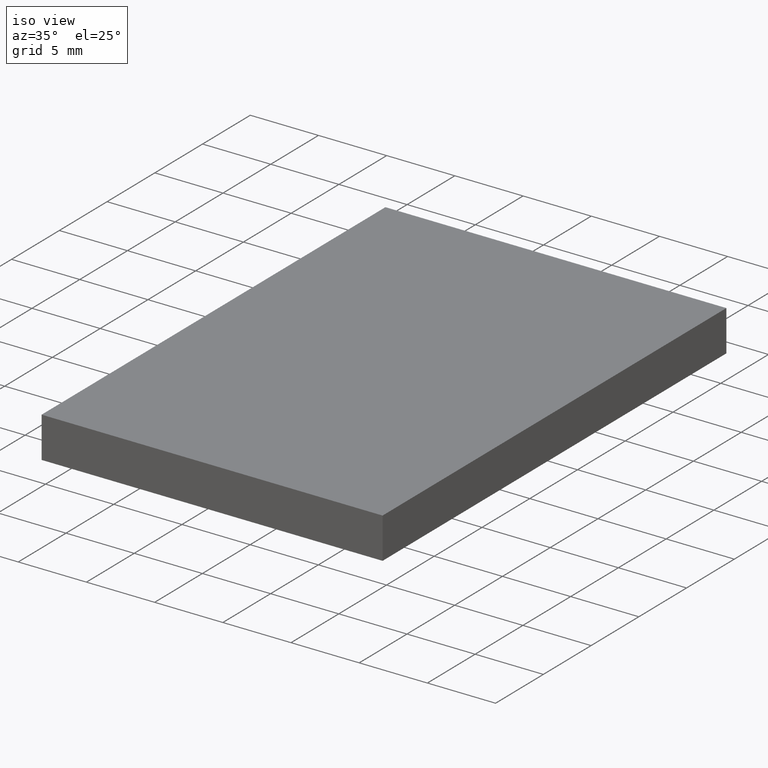
[diagram: clean part render]
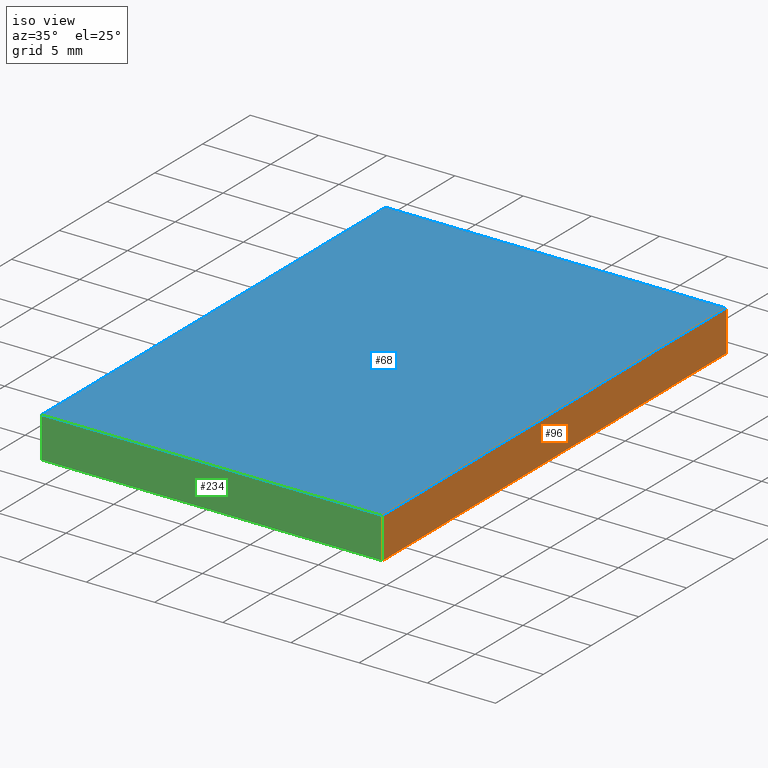
[diagram: same view with three faces highlighted in distinct colors, each labeled with its STEP entity id]
A machine part, iso view with three faces highlighted in distinct colors.
Their STEP definitions:

[orange] entity #96 — the highlighted planar face has unit normal (-1, -0, 0).
#10 = VERTEX_POINT ( 'NONE', #92 ) ;
#15 = DIRECTION ( 'NONE',  ( 2.891205793294678800E-016, -1.000000000000000000, 0.0000000000000000000 ) ) ;
#26 = CARTESIAN_POINT ( 'NONE',  ( 18.64837398373983700, 7.520325203252024700, 0.0000000000000000000 ) ) ;
#35 = VERTEX_POINT ( 'NONE', #70 ) ;
#41 = ORIENTED_EDGE ( 'NONE', *, *, #194, .F. ) ;
#50 = CARTESIAN_POINT ( 'NONE',  ( 18.64837398373984800, -28.47967479674797200, 3.000000000000000000 ) ) ;
#70 = CARTESIAN_POINT ( 'NONE',  ( 18.64837398373983700, 7.520325203252024700, 3.000000000000000000 ) ) ;
#71 = FACE_OUTER_BOUND ( 'NONE', #302, .T. ) ;
#91 = DIRECTION ( 'NONE',  ( -1.000000000000000000, -2.891205793294678800E-016, 0.0000000000000000000 ) ) ;
#92 = CARTESIAN_POINT ( 'NONE',  ( 18.64837398373984800, -28.47967479674797200, 0.0000000000000000000 ) ) ;
#96 = ADVANCED_FACE ( 'NONE', ( #71 ), #287, .F. ) ;
#102 = LINE ( 'NONE', #204, #235 ) ;
#109 = EDGE_CURVE ( 'NONE', #200, #10, #239, .T. ) ;
#118 = EDGE_CURVE ( 'NONE', #35, #155, #254, .T. ) ;
#135 = ORIENTED_EDGE ( 'NONE', *, *, #118, .F. ) ;
#141 = CARTESIAN_POINT ( 'NONE',  ( 18.64837398373983700, 7.520325203252024700, 3.000000000000000000 ) ) ;
#143 = DIRECTION ( 'NONE',  ( -0.0000000000000000000, -0.0000000000000000000, -1.000000000000000000 ) ) ;
#155 = VERTEX_POINT ( 'NONE', #172 ) ;
#172 = CARTESIAN_POINT ( 'NONE',  ( 18.64837398373983700, 7.520325203252024700, 0.0000000000000000000 ) ) ;
#173 = EDGE_CURVE ( 'NONE', #10, #155, #223, .T. ) ;
#194 = EDGE_CURVE ( 'NONE', #200, #35, #102, .T. ) ;
#200 = VERTEX_POINT ( 'NONE', #50 ) ;
#204 = CARTESIAN_POINT ( 'NONE',  ( 18.64837398373983700, 7.520325203252024700, 3.000000000000000000 ) ) ;
#223 = LINE ( 'NONE', #26, #301 ) ;
#225 = AXIS2_PLACEMENT_3D ( 'NONE', #141, #91, #15 ) ;
#235 = VECTOR ( 'NONE', #251, 1000.000000000000000 ) ;
#239 = LINE ( 'NONE', #247, #264 ) ;
#244 = ORIENTED_EDGE ( 'NONE', *, *, #109, .T. ) ;
#247 = CARTESIAN_POINT ( 'NONE',  ( 18.64837398373984800, -28.47967479674797200, 3.000000000000000000 ) ) ;
#251 = DIRECTION ( 'NONE',  ( -2.891205793294678800E-016, 1.000000000000000000, -0.0000000000000000000 ) ) ;
#254 = LINE ( 'NONE', #267, #295 ) ;
#264 = VECTOR ( 'NONE', #285, 1000.000000000000000 ) ;
#267 = CARTESIAN_POINT ( 'NONE',  ( 18.64837398373983700, 7.520325203252024700, 3.000000000000000000 ) ) ;
#285 = DIRECTION ( 'NONE',  ( -0.0000000000000000000, -0.0000000000000000000, -1.000000000000000000 ) ) ;
#287 = PLANE ( 'NONE',  #225 ) ;
#289 = ORIENTED_EDGE ( 'NONE', *, *, #173, .T. ) ;
#295 = VECTOR ( 'NONE', #143, 1000.000000000000000 ) ;
#301 = VECTOR ( 'NONE', #310, 1000.000000000000000 ) ;
#302 = EDGE_LOOP ( 'NONE', ( #289, #135, #41, #244 ) ) ;
#310 = DIRECTION ( 'NONE',  ( -2.891205793294678800E-016, 1.000000000000000000, -0.0000000000000000000 ) ) ;

[blue] entity #68 — the highlighted planar face has unit normal (-0, 0, 1).
#5 = ORIENTED_EDGE ( 'NONE', *, *, #182, .T. ) ;
#16 = DIRECTION ( 'NONE',  ( -0.0000000000000000000, 0.0000000000000000000, 1.000000000000000000 ) ) ;
#22 = CARTESIAN_POINT ( 'NONE',  ( -6.351626016260158100, -28.47967479674797200, 3.000000000000000000 ) ) ;
#27 = CARTESIAN_POINT ( 'NONE',  ( -6.351626016260162500, 7.520325203252024700, 3.000000000000000000 ) ) ;
#28 = VECTOR ( 'NONE', #250, 1000.000000000000000 ) ;
#29 = ORIENTED_EDGE ( 'NONE', *, *, #124, .T. ) ;
#35 = VERTEX_POINT ( 'NONE', #70 ) ;
#42 = CARTESIAN_POINT ( 'NONE',  ( -6.351626016260162500, 7.520325203252024700, 3.000000000000000000 ) ) ;
#50 = CARTESIAN_POINT ( 'NONE',  ( 18.64837398373984800, -28.47967479674797200, 3.000000000000000000 ) ) ;
#52 = CARTESIAN_POINT ( 'NONE',  ( -6.351626016260158100, -28.47967479674797200, 3.000000000000000000 ) ) ;
#60 = LINE ( 'NONE', #52, #28 ) ;
#63 = LINE ( 'NONE', #42, #224 ) ;
#68 = ADVANCED_FACE ( 'NONE', ( #298 ), #306, .T. ) ;
#70 = CARTESIAN_POINT ( 'NONE',  ( 18.64837398373983700, 7.520325203252024700, 3.000000000000000000 ) ) ;
#75 = DIRECTION ( 'NONE',  ( -1.000000000000000000, -0.0000000000000000000, -0.0000000000000000000 ) ) ;
#88 = EDGE_CURVE ( 'NONE', #174, #180, #63, .T. ) ;
#94 = ORIENTED_EDGE ( 'NONE', *, *, #88, .T. ) ;
#102 = LINE ( 'NONE', #204, #235 ) ;
#120 = CARTESIAN_POINT ( 'NONE',  ( -6.351626016260162500, 7.520325203252024700, 3.000000000000000000 ) ) ;
#124 = EDGE_CURVE ( 'NONE', #35, #174, #305, .T. ) ;
#162 = EDGE_LOOP ( 'NONE', ( #94, #5, #242, #29 ) ) ;
#174 = VERTEX_POINT ( 'NONE', #27 ) ;
#180 = VERTEX_POINT ( 'NONE', #22 ) ;
#182 = EDGE_CURVE ( 'NONE', #180, #200, #60, .T. ) ;
#186 = VECTOR ( 'NONE', #75, 1000.000000000000000 ) ;
#194 = EDGE_CURVE ( 'NONE', #200, #35, #102, .T. ) ;
#195 = CARTESIAN_POINT ( 'NONE',  ( 0.0000000000000000000, 0.0000000000000000000, 3.000000000000000000 ) ) ;
#200 = VERTEX_POINT ( 'NONE', #50 ) ;
#204 = CARTESIAN_POINT ( 'NONE',  ( 18.64837398373983700, 7.520325203252024700, 3.000000000000000000 ) ) ;
#218 = AXIS2_PLACEMENT_3D ( 'NONE', #195, #16, #220 ) ;
#220 = DIRECTION ( 'NONE',  ( 1.000000000000000000, 0.0000000000000000000, 0.0000000000000000000 ) ) ;
#222 = DIRECTION ( 'NONE',  ( 1.204669080539449300E-016, -1.000000000000000000, 0.0000000000000000000 ) ) ;
#224 = VECTOR ( 'NONE', #222, 1000.000000000000000 ) ;
#235 = VECTOR ( 'NONE', #251, 1000.000000000000000 ) ;
#242 = ORIENTED_EDGE ( 'NONE', *, *, #194, .T. ) ;
#250 = DIRECTION ( 'NONE',  ( 1.000000000000000000, 0.0000000000000000000, 0.0000000000000000000 ) ) ;
#251 = DIRECTION ( 'NONE',  ( -2.891205793294678800E-016, 1.000000000000000000, -0.0000000000000000000 ) ) ;
#298 = FACE_OUTER_BOUND ( 'NONE', #162, .T. ) ;
#305 = LINE ( 'NONE', #120, #186 ) ;
#306 = PLANE ( 'NONE',  #218 ) ;

[green] entity #234 — the highlighted planar face has unit normal (0, 1, 0).
#10 = VERTEX_POINT ( 'NONE', #92 ) ;
#22 = CARTESIAN_POINT ( 'NONE',  ( -6.351626016260158100, -28.47967479674797200, 3.000000000000000000 ) ) ;
#25 = ORIENTED_EDGE ( 'NONE', *, *, #109, .F. ) ;
#28 = VECTOR ( 'NONE', #250, 1000.000000000000000 ) ;
#39 = EDGE_LOOP ( 'NONE', ( #217, #25, #55, #286 ) ) ;
#50 = CARTESIAN_POINT ( 'NONE',  ( 18.64837398373984800, -28.47967479674797200, 3.000000000000000000 ) ) ;
#52 = CARTESIAN_POINT ( 'NONE',  ( -6.351626016260158100, -28.47967479674797200, 3.000000000000000000 ) ) ;
#55 = ORIENTED_EDGE ( 'NONE', *, *, #182, .F. ) ;
#57 = VECTOR ( 'NONE', #268, 1000.000000000000000 ) ;
#60 = LINE ( 'NONE', #52, #28 ) ;
#77 = EDGE_CURVE ( 'NONE', #180, #190, #108, .T. ) ;
#92 = CARTESIAN_POINT ( 'NONE',  ( 18.64837398373984800, -28.47967479674797200, 0.0000000000000000000 ) ) ;
#95 = AXIS2_PLACEMENT_3D ( 'NONE', #100, #151, #98 ) ;
#98 = DIRECTION ( 'NONE',  ( 0.0000000000000000000, -0.0000000000000000000, 1.000000000000000000 ) ) ;
#100 = CARTESIAN_POINT ( 'NONE',  ( -6.351626016260158100, -28.47967479674797200, 3.000000000000000000 ) ) ;
#107 = FACE_OUTER_BOUND ( 'NONE', #39, .T. ) ;
#108 = LINE ( 'NONE', #197, #57 ) ;
#109 = EDGE_CURVE ( 'NONE', #200, #10, #239, .T. ) ;
#121 = PLANE ( 'NONE',  #95 ) ;
#151 = DIRECTION ( 'NONE',  ( 0.0000000000000000000, 1.000000000000000000, 0.0000000000000000000 ) ) ;
#177 = DIRECTION ( 'NONE',  ( 1.000000000000000000, 0.0000000000000000000, 0.0000000000000000000 ) ) ;
#180 = VERTEX_POINT ( 'NONE', #22 ) ;
#182 = EDGE_CURVE ( 'NONE', #180, #200, #60, .T. ) ;
#190 = VERTEX_POINT ( 'NONE', #202 ) ;
#192 = LINE ( 'NONE', #201, #262 ) ;
#197 = CARTESIAN_POINT ( 'NONE',  ( -6.351626016260158100, -28.47967479674797200, 3.000000000000000000 ) ) ;
#200 = VERTEX_POINT ( 'NONE', #50 ) ;
#201 = CARTESIAN_POINT ( 'NONE',  ( -6.351626016260158100, -28.47967479674797200, 0.0000000000000000000 ) ) ;
#202 = CARTESIAN_POINT ( 'NONE',  ( -6.351626016260158100, -28.47967479674797200, 0.0000000000000000000 ) ) ;
#217 = ORIENTED_EDGE ( 'NONE', *, *, #304, .T. ) ;
#234 = ADVANCED_FACE ( 'NONE', ( #107 ), #121, .F. ) ;
#239 = LINE ( 'NONE', #247, #264 ) ;
#247 = CARTESIAN_POINT ( 'NONE',  ( 18.64837398373984800, -28.47967479674797200, 3.000000000000000000 ) ) ;
#250 = DIRECTION ( 'NONE',  ( 1.000000000000000000, 0.0000000000000000000, 0.0000000000000000000 ) ) ;
#262 = VECTOR ( 'NONE', #177, 1000.000000000000000 ) ;
#264 = VECTOR ( 'NONE', #285, 1000.000000000000000 ) ;
#268 = DIRECTION ( 'NONE',  ( -0.0000000000000000000, -0.0000000000000000000, -1.000000000000000000 ) ) ;
#285 = DIRECTION ( 'NONE',  ( -0.0000000000000000000, -0.0000000000000000000, -1.000000000000000000 ) ) ;
#286 = ORIENTED_EDGE ( 'NONE', *, *, #77, .T. ) ;
#304 = EDGE_CURVE ( 'NONE', #190, #10, #192, .T. ) ;